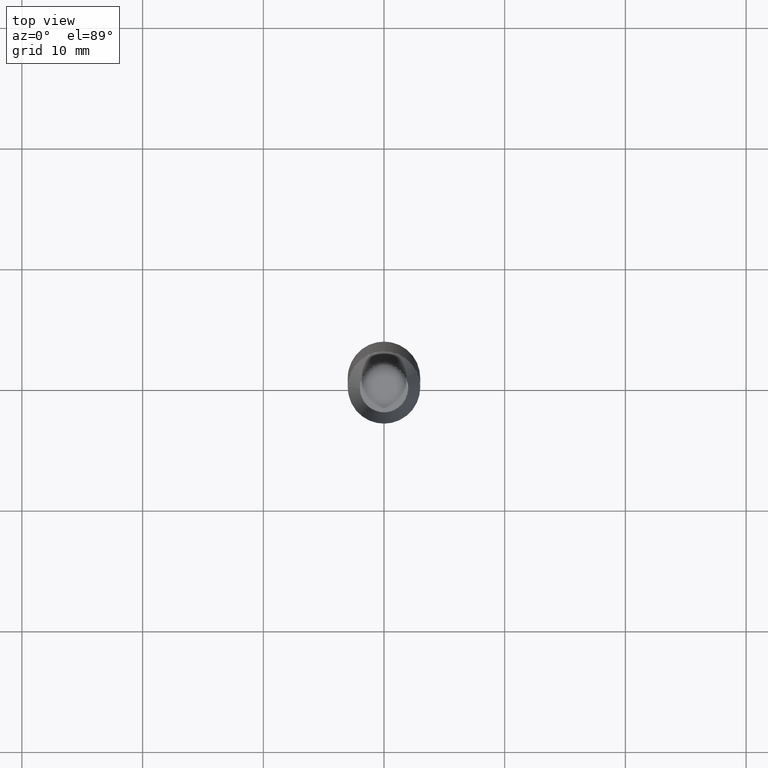
[diagram: clean part render]
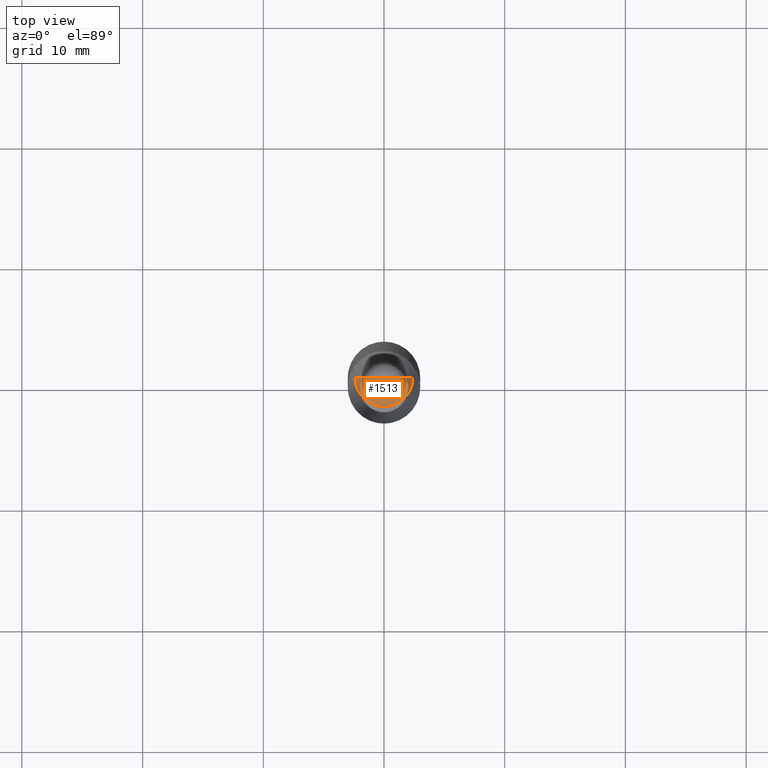
[diagram: same view with one face highlighted and labeled with its STEP entity id]
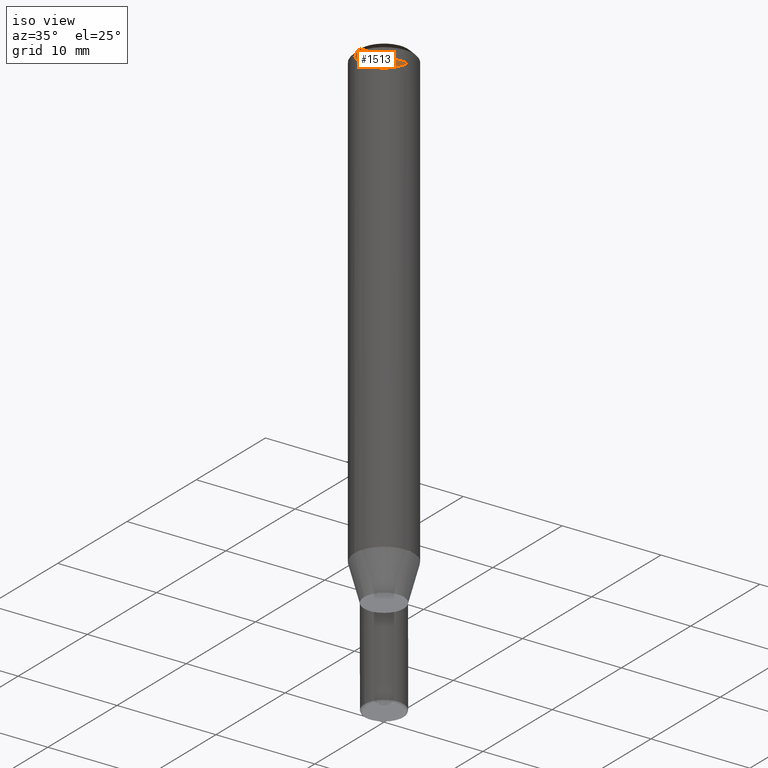
[diagram: same view with one face highlighted and labeled with its STEP entity id]
A machine part, top view. The second image highlights one B-rep face of the part: STEP entity #1513.
A second angle (iso view) of the same face is appended — the face is thin or edge-on in the first view.
In plain terms, the highlighted face is a freeform B-spline surface patch.
Its self-contained STEP definition (entity closure, byte-faithful):
#1158=CARTESIAN_POINT('',(2.4,0.0,46.267949192431));
#1162=CARTESIAN_POINT('',(-2.4,0.0,46.267949192431));
#1163=CARTESIAN_POINT('',(0.0,0.0,46.267949192431));
#1170=CARTESIAN_POINT('',(-2.4,-2.4,46.267949192431));
#1171=CARTESIAN_POINT('',(0.0,-2.4,46.267949192431));
#1172=CARTESIAN_POINT('',(2.4,-2.4,46.267949192431));
#1498=(
BOUNDED_SURFACE()
B_SPLINE_SURFACE(1,2,(
(#1162,#1170,#1171,#1172,#1158),
(#1163,#1163,#1163,#1163,#1163)
), .UNSPECIFIED.,.F.,.F.,.F.)
B_SPLINE_SURFACE_WITH_KNOTS((2,2),(3,2,3),(
0.0,1.0),(
0.0,0.5,1.0), .UNSPECIFIED.)
GEOMETRIC_REPRESENTATION_ITEM()
RATIONAL_B_SPLINE_SURFACE(((1.0,0.707106781187,1.0,0.707106781187,1.0),
(1.0,0.707106781187,1.0,0.707106781187,1.0)
))
REPRESENTATION_ITEM('')
SURFACE()
);
#1499=(
BOUNDED_CURVE()
B_SPLINE_CURVE(1,(#1163,#1158),.UNSPECIFIED.,.F.,.F.)
B_SPLINE_CURVE_WITH_KNOTS((2,2),
(0.0,1.0),.UNSPECIFIED.)
CURVE()
GEOMETRIC_REPRESENTATION_ITEM()
RATIONAL_B_SPLINE_CURVE((1.0,1.0))
REPRESENTATION_ITEM('')
);
#1500=(
BOUNDED_CURVE()
B_SPLINE_CURVE(2,(#1158,#1172,#1171,#1170,#1162),.UNSPECIFIED.,.F.,.F.)
B_SPLINE_CURVE_WITH_KNOTS((3,2,3),
(0.0,0.5,1.0),.UNSPECIFIED.)
CURVE()
GEOMETRIC_REPRESENTATION_ITEM()
RATIONAL_B_SPLINE_CURVE((1.0,0.707106781187,1.0,0.707106781187,1.0))
REPRESENTATION_ITEM('')
);
#1501=(
BOUNDED_CURVE()
B_SPLINE_CURVE(1,(#1162,#1163),.UNSPECIFIED.,.F.,.F.)
B_SPLINE_CURVE_WITH_KNOTS((2,2),
(0.0,1.0),.UNSPECIFIED.)
CURVE()
GEOMETRIC_REPRESENTATION_ITEM()
RATIONAL_B_SPLINE_CURVE((1.0,1.0))
REPRESENTATION_ITEM('')
);
#1502=VERTEX_POINT('',#1158);
#1503=VERTEX_POINT('',#1162);
#1504=VERTEX_POINT('',#1163);
#1505=EDGE_CURVE('',#1504,#1502,#1499,.T.);
#1506=EDGE_CURVE('',#1502,#1503,#1500,.T.);
#1507=EDGE_CURVE('',#1503,#1504,#1501,.T.);
#1508=ORIENTED_EDGE('',*,*,#1505,.T.);
#1509=ORIENTED_EDGE('',*,*,#1506,.T.);
#1510=ORIENTED_EDGE('',*,*,#1507,.T.);
#1511=EDGE_LOOP('',(#1508,#1509,#1510));
#1512=FACE_OUTER_BOUND('',#1511,.T.);
#1513=ADVANCED_FACE('',(#1512),#1498,.T.);